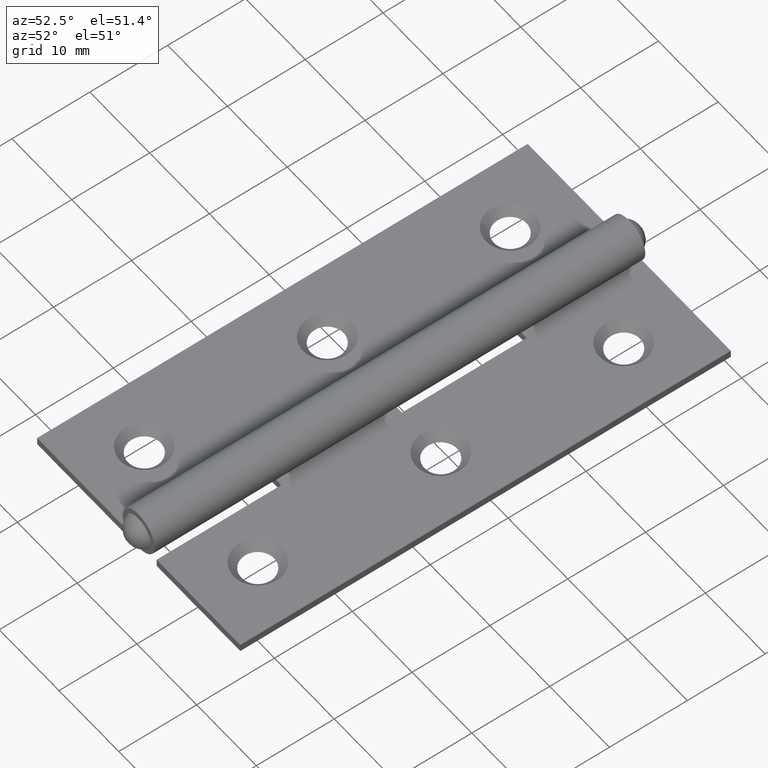
[diagram: clean part render]
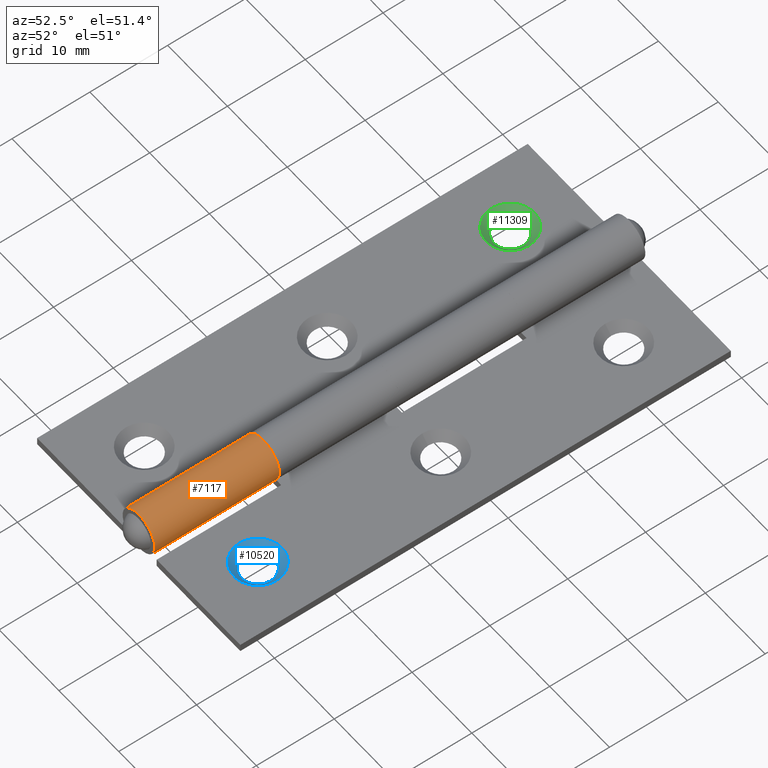
[diagram: same view with three faces highlighted in distinct colors, each labeled with its STEP entity id]
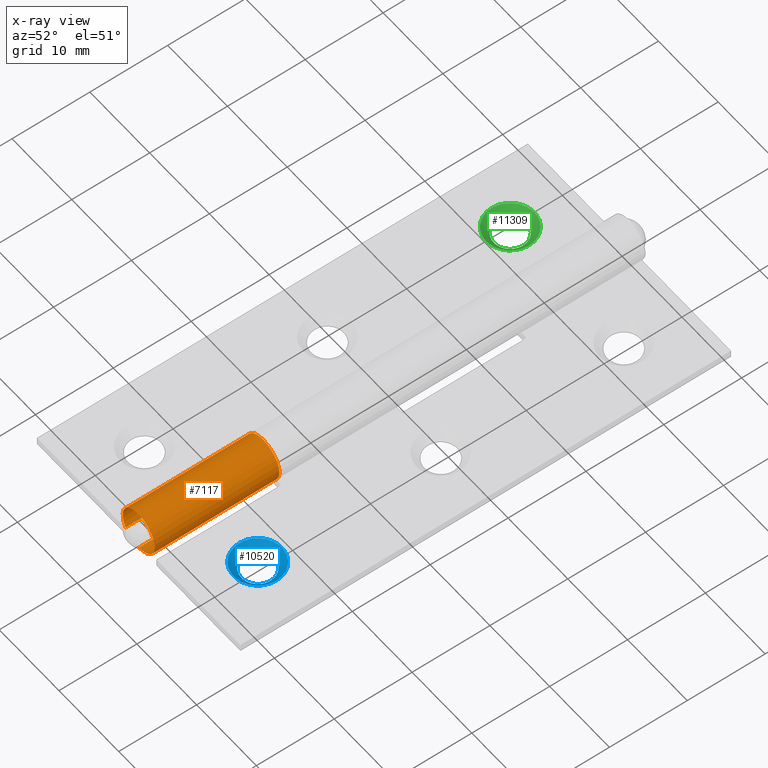
[diagram: x-ray of the same camera — body ghosted, the three highlighted faces saturated]
A machine part, auxiliary view with three faces highlighted in distinct colors.
The next image is the same camera in x-ray (body ghosted, the three faces saturated) — at least one of them is partly hidden behind the body in this view.
Their STEP definitions:

[orange] entity #7117 — the highlighted cylindrical surface (edge-blend (fillet) strip) has radius 2.7 mm, axis along (-0, -1, -0).
#336 = CARTESIAN_POINT ( 'NONE',  ( -2.700000000000000178, -31.50000000000000000, 2.700000000000000178 ) ) ;
#424 = AXIS2_PLACEMENT_3D ( 'NONE', #4879, #5817, #11149 ) ;
#1248 = DIRECTION ( 'NONE',  ( 0.000000000000000000, 1.000000000000000000, -0.000000000000000000 ) ) ;
#1290 = DIRECTION ( 'NONE',  ( 0.000000000000000000, 0.000000000000000000, -1.000000000000000000 ) ) ;
#1298 = EDGE_CURVE ( 'NONE', #6551, #6707, #8791, .T. ) ;
#1365 = EDGE_LOOP ( 'NONE', ( #9679, #1832, #2162, #7872 ) ) ;
#1832 = ORIENTED_EDGE ( 'NONE', *, *, #8582, .T. ) ;
#2058 = FACE_OUTER_BOUND ( 'NONE', #1365, .T. ) ;
#2162 = ORIENTED_EDGE ( 'NONE', *, *, #4941, .T. ) ;
#2298 = CARTESIAN_POINT ( 'NONE',  ( -2.700000000000000178, -15.50000000000000000, 3.512815038853035352E-16 ) ) ;
#2355 = DIRECTION ( 'NONE',  ( -0.000000000000000000, -1.000000000000000000, -0.000000000000000000 ) ) ;
#2569 = CARTESIAN_POINT ( 'NONE',  ( -2.700000000000000178, -31.50000000000000000, 0.000000000000000000 ) ) ;
#3983 = DIRECTION ( 'NONE',  ( 0.000000000000000000, 0.000000000000000000, -1.000000000000000000 ) ) ;
#4879 = CARTESIAN_POINT ( 'NONE',  ( -2.700000000000000178, -15.50000000000000000, 2.700000000000000178 ) ) ;
#4941 = EDGE_CURVE ( 'NONE', #7499, #6180, #9013, .T. ) ;
#4990 = CARTESIAN_POINT ( 'NONE',  ( -4.874856317093154701, -15.50000000000000711, 1.100000000000001421 ) ) ;
#5202 = CARTESIAN_POINT ( 'NONE',  ( -2.700000000000000178, 31.50000000000000000, 0.000000000000000000 ) ) ;
#5480 = DIRECTION ( 'NONE',  ( -0.000000000000000000, -1.000000000000000000, -0.000000000000000000 ) ) ;
#5817 = DIRECTION ( 'NONE',  ( 0.000000000000000000, -1.000000000000000000, 0.000000000000000000 ) ) ;
#6180 = VERTEX_POINT ( 'NONE', #9188 ) ;
#6412 = VECTOR ( 'NONE', #2355, 1000.000000000000000 ) ;
#6551 = VERTEX_POINT ( 'NONE', #2298 ) ;
#6707 = VERTEX_POINT ( 'NONE', #2569 ) ;
#7084 = CARTESIAN_POINT ( 'NONE',  ( -4.874856317093154701, 31.50000000000000000, 1.100000000000001199 ) ) ;
#7117 = ADVANCED_FACE ( 'NONE', ( #2058 ), #9541, .T. ) ;
#7499 = VERTEX_POINT ( 'NONE', #4990 ) ;
#7752 = VECTOR ( 'NONE', #11626, 1000.000000000000000 ) ;
#7855 = CIRCLE ( 'NONE', #424, 2.700000000000000178 ) ;
#7872 = ORIENTED_EDGE ( 'NONE', *, *, #10318, .T. ) ;
#8240 = CARTESIAN_POINT ( 'NONE',  ( -2.700000000000000178, 31.50000000000000000, 2.700000000000000178 ) ) ;
#8582 = EDGE_CURVE ( 'NONE', #6551, #7499, #7855, .T. ) ;
#8791 = LINE ( 'NONE', #5202, #6412 ) ;
#9013 = LINE ( 'NONE', #7084, #7752 ) ;
#9188 = CARTESIAN_POINT ( 'NONE',  ( -4.874856317093154701, -31.50000000000000000, 1.100000000000001199 ) ) ;
#9541 = CYLINDRICAL_SURFACE ( 'NONE', #9648, 2.700000000000000178 ) ;
#9648 = AXIS2_PLACEMENT_3D ( 'NONE', #8240, #5480, #1290 ) ;
#9679 = ORIENTED_EDGE ( 'NONE', *, *, #1298, .F. ) ;
#10282 = AXIS2_PLACEMENT_3D ( 'NONE', #336, #1248, #3983 ) ;
#10318 = EDGE_CURVE ( 'NONE', #6180, #6707, #10334, .T. ) ;
#10334 = CIRCLE ( 'NONE', #10282, 2.700000000000000178 ) ;
#11149 = DIRECTION ( 'NONE',  ( 0.000000000000000000, 0.000000000000000000, -1.000000000000000000 ) ) ;
#11626 = DIRECTION ( 'NONE',  ( -0.000000000000000000, -1.000000000000000000, -0.000000000000000000 ) ) ;

[blue] entity #10520 — the highlighted conical surface has half-angle 45 deg.
#203 = EDGE_CURVE ( 'NONE', #4837, #4837, #2866, .T. ) ;
#743 = EDGE_LOOP ( 'NONE', ( #1358 ) ) ;
#1358 = ORIENTED_EDGE ( 'NONE', *, *, #9820, .F. ) ;
#1609 = AXIS2_PLACEMENT_3D ( 'NONE', #6839, #11338, #4900 ) ;
#1715 = DIRECTION ( 'NONE',  ( 0.000000000000000000, 0.000000000000000000, 1.000000000000000000 ) ) ;
#2701 = CARTESIAN_POINT ( 'NONE',  ( -12.20000000000000817, 23.50000000000000000, -6.160819403652924453E-15 ) ) ;
#2866 = CIRCLE ( 'NONE', #1609, 2.099999999999999645 ) ;
#3884 = AXIS2_PLACEMENT_3D ( 'NONE', #2701, #1715, #9851 ) ;
#4003 = CONICAL_SURFACE ( 'NONE', #3884, 2.099999999999999645, 0.7853981633974511656 ) ;
#4721 = DIRECTION ( 'NONE',  ( -1.275531967630005245E-16, 0.000000000000000000, -1.000000000000000000 ) ) ;
#4837 = VERTEX_POINT ( 'NONE', #7624 ) ;
#4900 = DIRECTION ( 'NONE',  ( 1.000000000000000000, 0.000000000000000000, 0.000000000000000000 ) ) ;
#5142 = FACE_OUTER_BOUND ( 'NONE', #743, .T. ) ;
#5382 = VERTEX_POINT ( 'NONE', #10342 ) ;
#6557 = CARTESIAN_POINT ( 'NONE',  ( -12.20000000000000817, 23.50000000000000000, 1.000000000000001332 ) ) ;
#6800 = FACE_BOUND ( 'NONE', #9667, .T. ) ;
#6839 = CARTESIAN_POINT ( 'NONE',  ( -12.20000000000000817, 23.50000000000000000, 0.000000000000000000 ) ) ;
#7382 = CIRCLE ( 'NONE', #7491, 3.100000000000012523 ) ;
#7491 = AXIS2_PLACEMENT_3D ( 'NONE', #6557, #4721, #8372 ) ;
#7624 = CARTESIAN_POINT ( 'NONE',  ( -10.10000000000000853, 23.50000000000000000, 0.000000000000000000 ) ) ;
#8235 = ORIENTED_EDGE ( 'NONE', *, *, #203, .F. ) ;
#8372 = DIRECTION ( 'NONE',  ( -1.000000000000000000, 0.000000000000000000, 1.398970545142580625E-16 ) ) ;
#9667 = EDGE_LOOP ( 'NONE', ( #8235 ) ) ;
#9820 = EDGE_CURVE ( 'NONE', #5382, #5382, #7382, .T. ) ;
#9851 = DIRECTION ( 'NONE',  ( 1.000000000000000000, 0.000000000000000000, 0.000000000000000000 ) ) ;
#10342 = CARTESIAN_POINT ( 'NONE',  ( -15.30000000000002025, 23.50000000000000000, 1.000000000000001776 ) ) ;
#10520 = ADVANCED_FACE ( 'NONE', ( #5142, #6800 ), #4003, .F. ) ;
#11338 = DIRECTION ( 'NONE',  ( 0.000000000000000000, 0.000000000000000000, 1.000000000000000000 ) ) ;

[green] entity #11309 — the highlighted conical surface has half-angle 45 deg.
#297 = AXIS2_PLACEMENT_3D ( 'NONE', #470, #11429, #1378 ) ;
#470 = CARTESIAN_POINT ( 'NONE',  ( -12.20000000000000817, 23.50000000000000000, -6.160819403652924453E-15 ) ) ;
#1124 = FACE_BOUND ( 'NONE', #8454, .T. ) ;
#1378 = DIRECTION ( 'NONE',  ( 1.000000000000000000, 0.000000000000000000, 0.000000000000000000 ) ) ;
#1961 = EDGE_CURVE ( 'NONE', #2659, #2659, #5693, .T. ) ;
#2333 = EDGE_CURVE ( 'NONE', #6925, #6925, #8639, .T. ) ;
#2659 = VERTEX_POINT ( 'NONE', #4933 ) ;
#3368 = AXIS2_PLACEMENT_3D ( 'NONE', #10752, #3636, #8047 ) ;
#3548 = FACE_OUTER_BOUND ( 'NONE', #9293, .T. ) ;
#3636 = DIRECTION ( 'NONE',  ( -1.275531967630005245E-16, 0.000000000000000000, -1.000000000000000000 ) ) ;
#4933 = CARTESIAN_POINT ( 'NONE',  ( -10.10000000000000853, 23.50000000000000000, 0.000000000000000000 ) ) ;
#5071 = CARTESIAN_POINT ( 'NONE',  ( -12.20000000000000817, 23.50000000000000000, 0.000000000000000000 ) ) ;
#5693 = CIRCLE ( 'NONE', #9784, 2.099999999999999645 ) ;
#6925 = VERTEX_POINT ( 'NONE', #11168 ) ;
#7015 = DIRECTION ( 'NONE',  ( 0.000000000000000000, 0.000000000000000000, 1.000000000000000000 ) ) ;
#8047 = DIRECTION ( 'NONE',  ( -1.000000000000000000, 0.000000000000000000, 1.398970545142580625E-16 ) ) ;
#8454 = EDGE_LOOP ( 'NONE', ( #11705 ) ) ;
#8639 = CIRCLE ( 'NONE', #3368, 3.100000000000012523 ) ;
#8668 = DIRECTION ( 'NONE',  ( 1.000000000000000000, 0.000000000000000000, 0.000000000000000000 ) ) ;
#8734 = ORIENTED_EDGE ( 'NONE', *, *, #2333, .F. ) ;
#8911 = CONICAL_SURFACE ( 'NONE', #297, 2.099999999999999645, 0.7853981633974511656 ) ;
#9293 = EDGE_LOOP ( 'NONE', ( #8734 ) ) ;
#9784 = AXIS2_PLACEMENT_3D ( 'NONE', #5071, #7015, #8668 ) ;
#10752 = CARTESIAN_POINT ( 'NONE',  ( -12.20000000000000817, 23.50000000000000000, 1.000000000000001332 ) ) ;
#11168 = CARTESIAN_POINT ( 'NONE',  ( -15.30000000000002025, 23.50000000000000000, 1.000000000000001776 ) ) ;
#11309 = ADVANCED_FACE ( 'NONE', ( #3548, #1124 ), #8911, .F. ) ;
#11429 = DIRECTION ( 'NONE',  ( 0.000000000000000000, 0.000000000000000000, 1.000000000000000000 ) ) ;
#11705 = ORIENTED_EDGE ( 'NONE', *, *, #1961, .F. ) ;